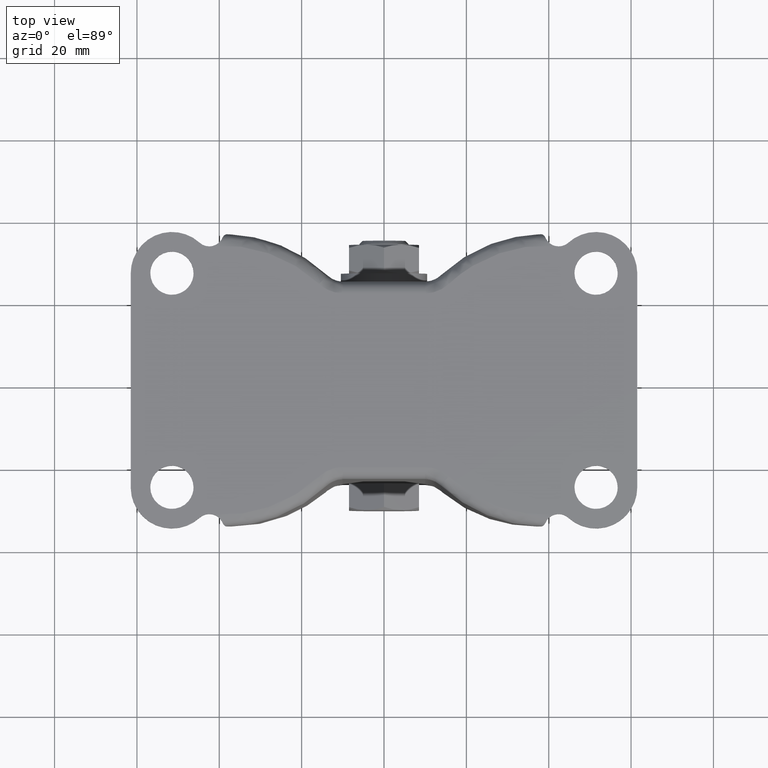
[diagram: clean part render]
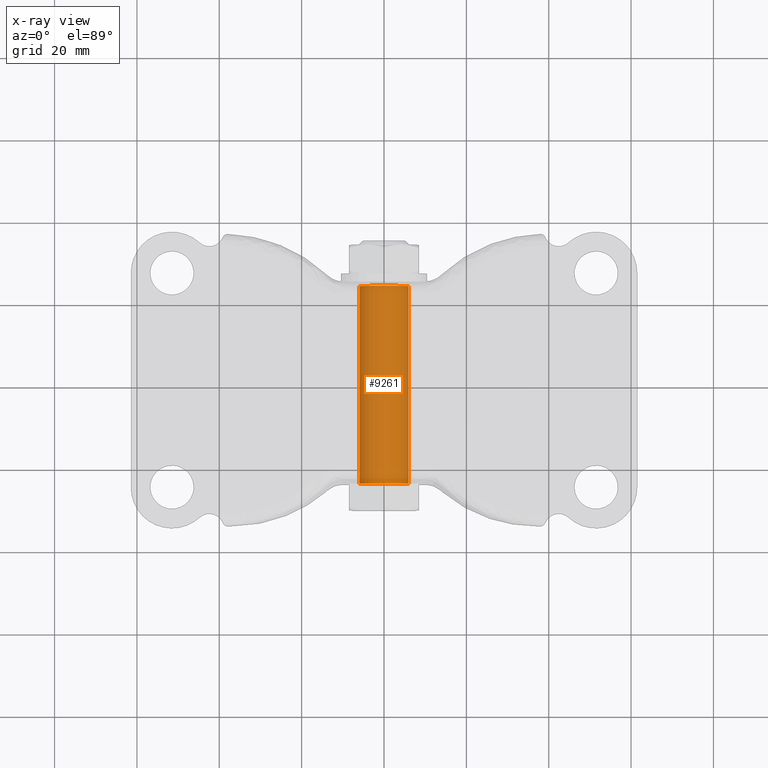
[diagram: x-ray — body ghosted, one internal face saturated and labeled with its STEP entity id]
A machine part, top view, then the same camera in x-ray: the body is ghosted and one INTERNAL B-rep face — a face not visible from any outside direction — is saturated and labeled: STEP entity #9261.
In plain terms, the highlighted face is a freeform B-spline surface patch.
Its self-contained STEP definition (entity closure, byte-faithful):
#9006=CARTESIAN_POINT('',(0.0,-24.0,-62.500000999999997));
#9007=VERTEX_POINT('',#9006);
#9008=CARTESIAN_POINT('',(-5.988807792375405,-24.0,-68.133708823496079));
#9009=VERTEX_POINT('',#9008);
#9010=CARTESIAN_POINT('',(0.0,-24.0,-62.500000999999997));
#9011=CARTESIAN_POINT('',(-5.644235460403928,-24.000000000000004,-62.500001000000005));
#9012=CARTESIAN_POINT('',(-5.988807792375405,-24.0,-68.133708823496065));
#9020=(BOUNDED_CURVE()B_SPLINE_CURVE(2,(#9010,#9011,#9012),.UNSPECIFIED.,.F.,.U.)B_SPLINE_CURVE_WITH_KNOTS((3,3),(0.500000000000000,0.739332962232077),.UNSPECIFIED.)CURVE()GEOMETRIC_REPRESENTATION_ITEM()RATIONAL_B_SPLINE_CURVE((1.0,0.719603993294754,0.976072041652002))REPRESENTATION_ITEM(''));
#9021=EDGE_CURVE('',#9007,#9009,#9020,.T.);
#9040=CARTESIAN_POINT('',(5.988807792375406,-24.0,-68.866291176503921));
#9041=VERTEX_POINT('',#9040);
#9055=CARTESIAN_POINT('',(5.988807792375405,-24.0,-68.866291176503921));
#9056=CARTESIAN_POINT('',(5.999999000000000,-23.999999999999996,-68.683316549410904));
#9057=CARTESIAN_POINT('',(5.999999000000000,-24.0,-68.500000000000000));
#9058=CARTESIAN_POINT('',(5.999998999999999,-23.999999999999996,-62.500000999999997));
#9059=CARTESIAN_POINT('',(0.0,-24.0,-62.500000999999997));
#9067=(BOUNDED_CURVE()B_SPLINE_CURVE(2,(#9055,#9056,#9057,#9058,#9059),.UNSPECIFIED.,.F.,.U.)B_SPLINE_CURVE_WITH_KNOTS((3,2,3),(0.239332962232077,0.250000000000000,0.500000000000000),.UNSPECIFIED.)CURVE()GEOMETRIC_REPRESENTATION_ITEM()RATIONAL_B_SPLINE_CURVE((0.976072041652002,0.987502787891793,1.0,0.707106781186548,1.0))REPRESENTATION_ITEM(''));
#9068=EDGE_CURVE('',#9041,#9007,#9067,.T.);
#9195=CARTESIAN_POINT('',(5.988807792396402,25.200000000000010,-68.866291176160601));
#9196=CARTESIAN_POINT('',(6.355098968557005,25.200000000000014,-62.877483383764208));
#9197=CARTESIAN_POINT('',(0.366291176160602,25.200000000000010,-62.511192207603600));
#9198=CARTESIAN_POINT('',(-5.622516616235800,25.200000000000014,-62.144901031442998));
#9199=CARTESIAN_POINT('',(-5.988807792396402,25.200000000000010,-68.133708823839399));
#9200=CARTESIAN_POINT('',(5.988807792396402,-25.230000000000000,-68.866291176160601));
#9201=CARTESIAN_POINT('',(6.355098968557005,-25.230000000000004,-62.877483383764208));
#9202=CARTESIAN_POINT('',(0.366291176160602,-25.230000000000000,-62.511192207603600));
#9203=CARTESIAN_POINT('',(-5.622516616235800,-25.230000000000004,-62.144901031442998));
#9204=CARTESIAN_POINT('',(-5.988807792396402,-25.230000000000000,-68.133708823839399));
#9212=(BOUNDED_SURFACE()B_SPLINE_SURFACE(2,1,((#9195,#9200),(#9196,#9201),(#9197,#9202),(#9198,#9203),(#9199,#9204)),.UNSPECIFIED.,.F.,.F.,.U.)B_SPLINE_SURFACE_WITH_KNOTS((3,2,3),(2,2),(0.0,9.941123840100030,19.882247680200059),(0.0,50.430000000000007),.UNSPECIFIED.)GEOMETRIC_REPRESENTATION_ITEM()RATIONAL_B_SPLINE_SURFACE(((1.0,1.0),(0.707106781186548,0.707106781186548),(1.0,1.0),(0.707106781186548,0.707106781186548),(1.0,1.0)))REPRESENTATION_ITEM('')SURFACE());
#9213=CARTESIAN_POINT('',(5.988807792375405,24.0,-68.866291176503907));
#9214=VERTEX_POINT('',#9213);
#9215=CARTESIAN_POINT('',(0.0,24.0,-62.500000999999997));
#9216=VERTEX_POINT('',#9215);
#9217=CARTESIAN_POINT('',(5.988807792375407,24.000000000000004,-68.866291176503893));
#9218=CARTESIAN_POINT('',(5.999999000000001,24.000000000000007,-68.683316549410904));
#9219=CARTESIAN_POINT('',(5.999999000000000,24.0,-68.500000000000000));
#9220=CARTESIAN_POINT('',(5.999998999999999,23.999999999999996,-62.500000999999997));
#9221=CARTESIAN_POINT('',(0.0,24.0,-62.500000999999997));
#9229=(BOUNDED_CURVE()B_SPLINE_CURVE(2,(#9217,#9218,#9219,#9220,#9221),.UNSPECIFIED.,.F.,.U.)B_SPLINE_CURVE_WITH_KNOTS((3,2,3),(0.239332962232077,0.250000000000000,0.500000000000000),.UNSPECIFIED.)CURVE()GEOMETRIC_REPRESENTATION_ITEM()RATIONAL_B_SPLINE_CURVE((0.976072041652004,0.987502787891794,1.0,0.707106781186548,1.0))REPRESENTATION_ITEM(''));
#9230=EDGE_CURVE('',#9214,#9216,#9229,.T.);
#9231=ORIENTED_EDGE('',*,*,#9230,.T.);
#9232=CARTESIAN_POINT('',(-5.988807792375405,24.0,-68.133708823496079));
#9233=VERTEX_POINT('',#9232);
#9234=CARTESIAN_POINT('',(0.0,24.0,-62.500000999999997));
#9235=CARTESIAN_POINT('',(-5.644235460403928,24.000000000000004,-62.500001000000005));
#9236=CARTESIAN_POINT('',(-5.988807792375405,24.0,-68.133708823496065));
#9244=(BOUNDED_CURVE()B_SPLINE_CURVE(2,(#9234,#9235,#9236),.UNSPECIFIED.,.F.,.U.)B_SPLINE_CURVE_WITH_KNOTS((3,3),(0.500000000000000,0.739332962232077),.UNSPECIFIED.)CURVE()GEOMETRIC_REPRESENTATION_ITEM()RATIONAL_B_SPLINE_CURVE((1.0,0.719603993294754,0.976072041652002))REPRESENTATION_ITEM(''));
#9245=EDGE_CURVE('',#9216,#9233,#9244,.T.);
#9246=ORIENTED_EDGE('',*,*,#9245,.T.);
#9247=CARTESIAN_POINT('',(-5.988807792375405,24.0,-68.133708823496079));
#9248=CARTESIAN_POINT('',(-5.988807792375405,-24.0,-68.133708823496079));
#9249=QUASI_UNIFORM_CURVE('',1,(#9247,#9248),.UNSPECIFIED.,.F.,.U.);
#9250=EDGE_CURVE('',#9233,#9009,#9249,.T.);
#9251=ORIENTED_EDGE('',*,*,#9250,.T.);
#9252=ORIENTED_EDGE('',*,*,#9021,.F.);
#9253=ORIENTED_EDGE('',*,*,#9068,.F.);
#9254=CARTESIAN_POINT('',(5.988807792375405,24.0,-68.866291176503907));
#9255=CARTESIAN_POINT('',(5.988807792375406,-24.0,-68.866291176503921));
#9256=QUASI_UNIFORM_CURVE('',1,(#9254,#9255),.UNSPECIFIED.,.F.,.U.);
#9257=EDGE_CURVE('',#9214,#9041,#9256,.T.);
#9258=ORIENTED_EDGE('',*,*,#9257,.F.);
#9259=EDGE_LOOP('',(#9231,#9246,#9251,#9252,#9253,#9258));
#9260=FACE_OUTER_BOUND('',#9259,.T.);
#9261=ADVANCED_FACE('',(#9260),#9212,.T.);